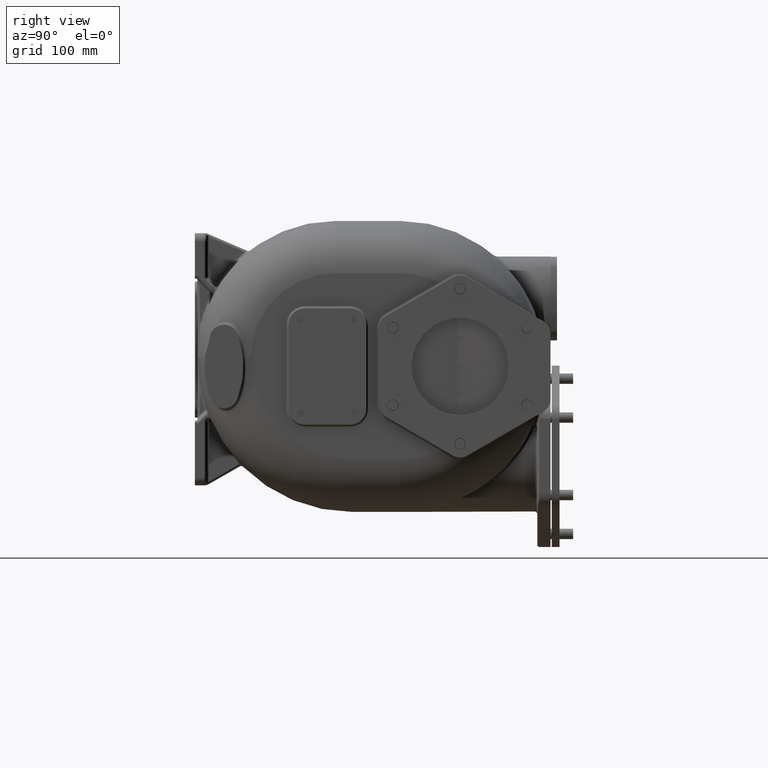
[diagram: clean part render]
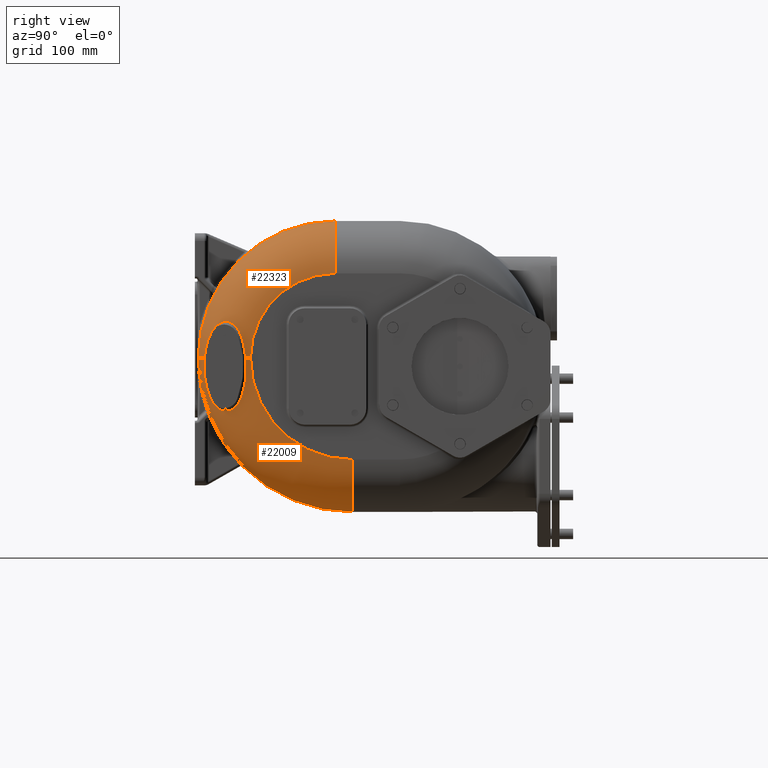
[diagram: same view with one multi-face feature highlighted, each face labeled with its STEP entity id]
A machine part, right view. The highlighted faces form ONE feature: a constant-radius fillet chain: 2 tangent blend faces with common blend radius 81 mm. The faces share edges in the B-rep.
Their STEP definitions:
[1] entity #22009 (Torus):
#594=CARTESIAN_POINT('',(1.323108332678E2,1.463278025361E1,-1.3E1));
#595=CARTESIAN_POINT('',(1.321929159865E2,1.456947936981E1,-1.374555449030E1));
#596=CARTESIAN_POINT('',(1.319638233510E2,1.445455072807E1,-1.524084312153E1));
#597=CARTESIAN_POINT('',(1.316405377955E2,1.431721406541E1,-1.749793679789E1));
#598=CARTESIAN_POINT('',(1.313388376110E2,1.421540285107E1,-1.976220701034E1));
#599=CARTESIAN_POINT('',(1.310594774055E2,1.414914611051E1,-2.202897011508E1));
#600=CARTESIAN_POINT('',(1.308034259133E2,1.411841430698E1,-2.429302126710E1));
#601=CARTESIAN_POINT('',(1.305714059698E2,1.412288453073E1,-2.654936909042E1));
#602=CARTESIAN_POINT('',(1.303641189346E2,1.416203132697E1,-2.879253267763E1));
#603=CARTESIAN_POINT('',(1.301821588615E2,1.423507465947E1,-3.101674278618E1));
#604=CARTESIAN_POINT('',(1.300258495110E2,1.434092456779E1,-3.321630553775E1));
#605=CARTESIAN_POINT('',(1.298956415263E2,1.447841280720E1,-3.538582157033E1));
#606=CARTESIAN_POINT('',(1.297916810723E2,1.464606482799E1,-3.751987319681E1));
#607=CARTESIAN_POINT('',(1.297138265640E2,1.484216925607E1,-3.961354069893E1));
#608=CARTESIAN_POINT('',(1.296619765889E2,1.506519338546E1,-4.166411083156E1));
#609=CARTESIAN_POINT('',(1.296357107990E2,1.531336935544E1,-4.366854482837E1));
#610=CARTESIAN_POINT('',(1.296345710273E2,1.558501175040E1,-4.562486243165E1));
#611=CARTESIAN_POINT('',(1.296580666419E2,1.587854971024E1,-4.753196597303E1));
#612=CARTESIAN_POINT('',(1.297054573793E2,1.619228994133E1,-4.938863645890E1));
#613=CARTESIAN_POINT('',(1.297761310083E2,1.652480432405E1,-5.119476029080E1));
#614=CARTESIAN_POINT('',(1.298693537382E2,1.687468746011E1,-5.295039370158E1));
#615=CARTESIAN_POINT('',(1.299843304193E2,1.724059390064E1,-5.465581021174E1));
#616=CARTESIAN_POINT('',(1.301203787487E2,1.762139047255E1,-5.631180013578E1));
#617=CARTESIAN_POINT('',(1.302766966480E2,1.801595976922E1,-5.791919304816E1));
#618=CARTESIAN_POINT('',(1.304525560798E2,1.842332008604E1,-5.947898473001E1));
#619=CARTESIAN_POINT('',(1.306472512651E2,1.884259451904E1,-6.099229934181E1));
#620=CARTESIAN_POINT('',(1.308600437599E2,1.927297211061E1,-6.246034021823E1));
#621=CARTESIAN_POINT('',(1.310902707221E2,1.971372939236E1,-6.388424488894E1));
#622=CARTESIAN_POINT('',(1.313372636215E2,2.016422670904E1,-6.526527235066E1));
#623=CARTESIAN_POINT('',(1.316003771177E2,2.062387951190E1,-6.660461685288E1));
#624=CARTESIAN_POINT('',(1.318789948743E2,2.109214708328E1,-6.790337406105E1));
#625=CARTESIAN_POINT('',(1.321725244732E2,2.156858203436E1,-6.916276597328E1));
#626=CARTESIAN_POINT('',(1.324803776733E2,2.205272903275E1,-7.038378803355E1));
#627=CARTESIAN_POINT('',(1.328019992718E2,2.254420348146E1,-7.156748310063E1));
#628=CARTESIAN_POINT('',(1.331368547447E2,2.304266699685E1,-7.271487294511E1));
#629=CARTESIAN_POINT('',(1.334843961739E2,2.354775701753E1,-7.382678815048E1));
#630=CARTESIAN_POINT('',(1.338441350259E2,2.405920807460E1,-7.490417352150E1));
#631=CARTESIAN_POINT('',(1.342155565869E2,2.457672296699E1,-7.594780450483E1));
#632=CARTESIAN_POINT('',(1.345981686769E2,2.510003405992E1,-7.695842569171E1));
#633=CARTESIAN_POINT('',(1.349915192180E2,2.562893215547E1,-7.793681314708E1));
#634=CARTESIAN_POINT('',(1.353951091935E2,2.616315119328E1,-7.888357244240E1));
#635=CARTESIAN_POINT('',(1.358085079080E2,2.670250573226E1,-7.979937482440E1));
#636=CARTESIAN_POINT('',(1.362312618623E2,2.724679058739E1,-8.068481012046E1));
#637=CARTESIAN_POINT('',(1.366629148651E2,2.779579373420E1,-8.154040366904E1));
#638=CARTESIAN_POINT('',(1.371030703166E2,2.834936953940E1,-8.236672217447E1));
#639=CARTESIAN_POINT('',(1.375512711636E2,2.890731136185E1,-8.316422303742E1));
#640=CARTESIAN_POINT('',(1.380071182059E2,2.946946616968E1,-8.393337852558E1));
#641=CARTESIAN_POINT('',(1.384702104602E2,3.003568397904E1,-8.467463859723E1));
#642=CARTESIAN_POINT('',(1.389401160171E2,3.060578050749E1,-8.538838898758E1));
#643=CARTESIAN_POINT('',(1.394164729358E2,3.117963545908E1,-8.607503727699E1));
#644=CARTESIAN_POINT('',(1.398988645163E2,3.175708003004E1,-8.673493992039E1));
#645=CARTESIAN_POINT('',(1.403869006968E2,3.233796203254E1,-8.736843292871E1));
#646=CARTESIAN_POINT('',(1.408802221836E2,3.292215751081E1,-8.797585213930E1));
#647=CARTESIAN_POINT('',(1.413784109194E2,3.350948687114E1,-8.855748941958E1));
#648=CARTESIAN_POINT('',(1.418811095929E2,3.409981679914E1,-8.911363189090E1));
#649=CARTESIAN_POINT('',(1.423879383908E2,3.469299394010E1,-8.964455076792E1));
#650=CARTESIAN_POINT('',(1.428984913039E2,3.528883420617E1,-9.015048998223E1));
#651=CARTESIAN_POINT('',(1.434124191458E2,3.588719641385E1,-9.063168742857E1));
#652=CARTESIAN_POINT('',(1.439293170632E2,3.648788712883E1,-9.108836342053E1));
#653=CARTESIAN_POINT('',(1.444487901576E2,3.709071163010E1,-9.152072324662E1));
#654=CARTESIAN_POINT('',(1.449704750155E2,3.769549554336E1,-9.192896344836E1));
#655=CARTESIAN_POINT('',(1.454939456896E2,3.830200168700E1,-9.231326869725E1));
#656=CARTESIAN_POINT('',(1.460188110616E2,3.891001313679E1,-9.267381641223E1));
#657=CARTESIAN_POINT('',(1.465446803131E2,3.951930424899E1,-9.301077692639E1));
#658=CARTESIAN_POINT('',(1.470711247058E2,4.012960732484E1,-9.332432350819E1));
#659=CARTESIAN_POINT('',(1.475977579939E2,4.074068180711E1,-9.361462412449E1));
#660=CARTESIAN_POINT('',(1.481241656165E2,4.135224879858E1,-9.388184153948E1));
#661=CARTESIAN_POINT('',(1.486499190286E2,4.196400698444E1,-9.412614830144E1));
#662=CARTESIAN_POINT('',(1.491746235057E2,4.257567251161E1,-9.434771132124E1));
#663=CARTESIAN_POINT('',(1.496978756090E2,4.318694818094E1,-9.454671811071E1));
#664=CARTESIAN_POINT('',(1.502192922606E2,4.379754763319E1,-9.472336679492E1));
#665=CARTESIAN_POINT('',(1.507385054394E2,4.440718144728E1,-9.487784233726E1));
#666=CARTESIAN_POINT('',(1.512550967418E2,4.501549855094E1,-9.501034644267E1));
#667=CARTESIAN_POINT('',(1.517686710283E2,4.562215571993E1,-9.512108529684E1));
#668=CARTESIAN_POINT('',(1.522788843594E2,4.622685477822E1,-9.521028024643E1));
#669=CARTESIAN_POINT('',(1.527854503185E2,4.682936281408E1,-9.527818802354E1));
#670=CARTESIAN_POINT('',(1.532881003993E2,4.742944416094E1,-9.532503650922E1));
#671=CARTESIAN_POINT('',(1.537865824981E2,4.802687725904E1,-9.535106683456E1));
#672=CARTESIAN_POINT('',(1.541159068464E2,4.842318745853E1,-9.535470739627E1));
#673=CARTESIAN_POINT('',(1.542798226339E2,4.862085925553E1,-9.535313771391E1));
#675=CARTESIAN_POINT('',(1.542798226339E2,4.862085925553E1,-9.535313771391E1));
#676=CARTESIAN_POINT('',(1.544423996887E2,4.881691741832E1,-9.535158046549E1));
#677=CARTESIAN_POINT('',(1.547660308980E2,4.920798821862E1,-9.534172661827E1));
#678=CARTESIAN_POINT('',(1.552469256741E2,4.979153858810E1,-9.530694732464E1));
#679=CARTESIAN_POINT('',(1.557229646401E2,5.037170033012E1,-9.525237073883E1));
#680=CARTESIAN_POINT('',(1.561939544066E2,5.094826299052E1,-9.517819314944E1));
#681=CARTESIAN_POINT('',(1.566597004572E2,5.152102249796E1,-9.508464989140E1));
#682=CARTESIAN_POINT('',(1.571200135625E2,5.208975288240E1,-9.497193550964E1));
#683=CARTESIAN_POINT('',(1.575748336676E2,5.265439112657E1,-9.484023676056E1));
#684=CARTESIAN_POINT('',(1.580241895115E2,5.321498671247E1,-9.468970706505E1));
#685=CARTESIAN_POINT('',(1.584681018771E2,5.377155684404E1,-9.452042641100E1));
#686=CARTESIAN_POINT('',(1.589065847698E2,5.432413239216E1,-9.433250757738E1));
#687=CARTESIAN_POINT('',(1.593396506228E2,5.487272836058E1,-9.412601087209E1));
#688=CARTESIAN_POINT('',(1.597673262482E2,5.541736840637E1,-9.390094647716E1));
#689=CARTESIAN_POINT('',(1.601897007090E2,5.595818063820E1,-9.365731798904E1));
#690=CARTESIAN_POINT('',(1.606068435463E2,5.649524462615E1,-9.339504330858E1));
#691=CARTESIAN_POINT('',(1.610188425294E2,5.702867605303E1,-9.311401723105E1));
#692=CARTESIAN_POINT('',(1.614258031685E2,5.755862786975E1,-9.281410447574E1));
#693=CARTESIAN_POINT('',(1.618277977199E2,5.808518710029E1,-9.249509024887E1));
#694=CARTESIAN_POINT('',(1.622249585266E2,5.860854908487E1,-9.215672515870E1));
#695=CARTESIAN_POINT('',(1.626174111708E2,5.912889893847E1,-9.179868863430E1));
#696=CARTESIAN_POINT('',(1.630052469816E2,5.964636731508E1,-9.142059959251E1));
#697=CARTESIAN_POINT('',(1.633885668407E2,6.016113166212E1,-9.102207403849E1));
#698=CARTESIAN_POINT('',(1.637674053966E2,6.067326573026E1,-9.060269218464E1));
#699=CARTESIAN_POINT('',(1.641418927591E2,6.118298030003E1,-9.016187580460E1));
#700=CARTESIAN_POINT('',(1.645123023906E2,6.169071057770E1,-8.969882063545E1));
#701=CARTESIAN_POINT('',(1.648788790020E2,6.219684695184E1,-8.921255958476E1));
#702=CARTESIAN_POINT('',(1.652413590373E2,6.270110272967E1,-8.870274918509E1));
#703=CARTESIAN_POINT('',(1.655992920661E2,6.320292619056E1,-8.816936683965E1));
#704=CARTESIAN_POINT('',(1.659522527307E2,6.370177302325E1,-8.761239062495E1));
#705=CARTESIAN_POINT('',(1.662995351924E2,6.419670448315E1,-8.703240965125E1));
#706=CARTESIAN_POINT('',(1.666404219958E2,6.468672674218E1,-8.643023728479E1));
#707=CARTESIAN_POINT('',(1.669745766666E2,6.517136167087E1,-8.580619880309E1));
#708=CARTESIAN_POINT('',(1.673021358542E2,6.565082661331E1,-8.515978863903E1));
#709=CARTESIAN_POINT('',(1.676230990987E2,6.612513653549E1,-8.449067039079E1));
#710=CARTESIAN_POINT('',(1.679375383302E2,6.659441634409E1,-8.379831156633E1));
#711=CARTESIAN_POINT('',(1.682455083759E2,6.705878138114E1,-8.308215865974E1));
#712=CARTESIAN_POINT('',(1.685470251422E2,6.751828447914E1,-8.234165568474E1));
#713=CARTESIAN_POINT('',(1.688420876776E2,6.797295725393E1,-8.157622617370E1));
#714=CARTESIAN_POINT('',(1.691306688300E2,6.842280165738E1,-8.078532277697E1));
#715=CARTESIAN_POINT('',(1.694127200566E2,6.886777475055E1,-7.996837531236E1));
#716=CARTESIAN_POINT('',(1.696881846654E2,6.930782205317E1,-7.912479599465E1));
#717=CARTESIAN_POINT('',(1.699569862022E2,6.974286449017E1,-7.825403907476E1));
#718=CARTESIAN_POINT('',(1.702190278252E2,7.017276547454E1,-7.735554245570E1));
#719=CARTESIAN_POINT('',(1.704742056317E2,7.059737860701E1,-7.642877167029E1));
#720=CARTESIAN_POINT('',(1.707224052516E2,7.101653524537E1,-7.547323004446E1));
#721=CARTESIAN_POINT('',(1.709634945513E2,7.142999909520E1,-7.448842477709E1));
#722=CARTESIAN_POINT('',(1.711973473386E2,7.183754741465E1,-7.347391052112E1));
#723=CARTESIAN_POINT('',(1.714238293693E2,7.223891580083E1,-7.242927937736E1));
#724=CARTESIAN_POINT('',(1.716427978446E2,7.263378097129E1,-7.135415807817E1));
#725=CARTESIAN_POINT('',(1.718541296952E2,7.302185485215E1,-7.024822214443E1));
#726=CARTESIAN_POINT('',(1.720576922831E2,7.340277427429E1,-6.911120060085E1));
#727=CARTESIAN_POINT('',(1.722533629531E2,7.377615390168E1,-6.794287372012E1));
#728=CARTESIAN_POINT('',(1.724410455457E2,7.414164359585E1,-6.674306832442E1));
#729=CARTESIAN_POINT('',(1.726206357197E2,7.449879221529E1,-6.551169515921E1));
#730=CARTESIAN_POINT('',(1.727920612088E2,7.484718099399E1,-6.424870852858E1));
#731=CARTESIAN_POINT('',(1.729552720555E2,7.518639007246E1,-6.295412666103E1));
#732=CARTESIAN_POINT('',(1.731102218938E2,7.551591173362E1,-6.162807533586E1));
#733=CARTESIAN_POINT('',(1.732569109331E2,7.583531077657E1,-6.027070178700E1));
#734=CARTESIAN_POINT('',(1.733953525764E2,7.614409611057E1,-5.888226534023E1));
#735=CARTESIAN_POINT('',(1.735255837751E2,7.644174550661E1,-5.746311762298E1));
#736=CARTESIAN_POINT('',(1.736476883073E2,7.672781013281E1,-5.601362639371E1));
#737=CARTESIAN_POINT('',(1.737617569490E2,7.700174538463E1,-5.453434101373E1));
#738=CARTESIAN_POINT('',(1.738679219137E2,7.726305174979E1,-5.302584817470E1));
#739=CARTESIAN_POINT('',(1.739663486652E2,7.751125618231E1,-5.148879738054E1));
#740=CARTESIAN_POINT('',(1.740572161374E2,7.774581458037E1,-4.992400309577E1));
#741=CARTESIAN_POINT('',(1.741407475678E2,7.796627499115E1,-4.833225306416E1));
#742=CARTESIAN_POINT('',(1.742171773482E2,7.817214000754E1,-4.671455235016E1));
#743=CARTESIAN_POINT('',(1.742867599844E2,7.836291005654E1,-4.507204591842E1));
#744=CARTESIAN_POINT('',(1.743497810481E2,7.853817016881E1,-4.340586654174E1));
#745=CARTESIAN_POINT('',(1.744065340878E2,7.869746347388E1,-4.171716124025E1));
#746=CARTESIAN_POINT('',(1.744573313751E2,7.884040526037E1,-4.000701094048E1));
#747=CARTESIAN_POINT('',(1.745024805864E2,7.896660903105E1,-3.827683973337E1));
#748=CARTESIAN_POINT('',(1.745422779772E2,7.907565912617E1,-3.652858319249E1));
#749=CARTESIAN_POINT('',(1.745770289814E2,7.916725590452E1,-3.476419529846E1));
#750=CARTESIAN_POINT('',(1.746070393668E2,7.924111536502E1,-3.298477535779E1));
#751=CARTESIAN_POINT('',(1.746325963960E2,7.929697648165E1,-3.119123310261E1));
#752=CARTESIAN_POINT('',(1.746539632849E2,7.933463124442E1,-2.938449858556E1));
#753=CARTESIAN_POINT('',(1.746713737393E2,7.935392833068E1,-2.756570393844E1));
#754=CARTESIAN_POINT('',(1.746850329264E2,7.935477703971E1,-2.573534404594E1));
#755=CARTESIAN_POINT('',(1.746950718285E2,7.933700093219E1,-2.389773536613E1));
#756=CARTESIAN_POINT('',(1.747015977497E2,7.930059672400E1,-2.205906377323E1));
#757=CARTESIAN_POINT('',(1.747047109882E2,7.924577813919E1,-2.022482491122E1));
#758=CARTESIAN_POINT('',(1.747044601726E2,7.917248507951E1,-1.839815145703E1));
#759=CARTESIAN_POINT('',(1.747008651088E2,7.908084210558E1,-1.658245740338E1));
#760=CARTESIAN_POINT('',(1.746939104412E2,7.897104841513E1,-1.478055333917E1));
#761=CARTESIAN_POINT('',(1.746870133239E2,7.888607797407E1,-1.359177182079E1));
#762=CARTESIAN_POINT('',(1.746829829849E2,7.884065249736E1,-1.299999999999E1));
#764=CARTESIAN_POINT('',(9.4E1,8.6E1,-1.3E1));
#765=DIRECTION('',(0.E0,0.E0,-1.E0));
#766=DIRECTION('',(1.E0,0.E0,0.E0));
#767=AXIS2_PLACEMENT_3D('',#764,#765,#766);
#769=CARTESIAN_POINT('',(9.4E1,8.6E1,-1.3E1));
#770=DIRECTION('',(0.E0,0.E0,-1.E0));
#771=DIRECTION('',(4.729732502194E-1,-8.810767869925E-1,0.E0));
#772=AXIS2_PLACEMENT_3D('',#769,#770,#771);
#1496=CARTESIAN_POINT('',(9.4E1,2.43E2,-1.3E1));
#1497=DIRECTION('',(1.E0,0.E0,0.E0));
#1498=DIRECTION('',(0.E0,-1.E0,0.E0));
#1499=AXIS2_PLACEMENT_3D('',#1496,#1497,#1498);
#5146=CARTESIAN_POINT('',(9.4E1,2.43E2,-1.7E2));
#5147=DIRECTION('',(0.E0,1.E0,0.E0));
#5148=DIRECTION('',(1.E0,0.E0,0.E0));
#5149=AXIS2_PLACEMENT_3D('',#5146,#5147,#5148);
#5164=CARTESIAN_POINT('',(1.75E2,2.43E2,-1.3E1));
#5165=DIRECTION('',(1.E0,0.E0,0.E0));
#5166=DIRECTION('',(0.E0,-1.E0,0.E0));
#5167=AXIS2_PLACEMENT_3D('',#5164,#5165,#5166);
#19100=CARTESIAN_POINT('',(9.4E1,2.43E2,-2.51E2));
#19102=VERTEX_POINT('',#19100);
#19203=CARTESIAN_POINT('',(1.75E2,2.43E2,-1.7E2));
#19205=VERTEX_POINT('',#19203);
#19209=CARTESIAN_POINT('',(1.75E2,8.6E1,-1.3E1));
#19210=VERTEX_POINT('',#19209);
#19211=CARTESIAN_POINT('',(9.4E1,5.E0,-1.3E1));
#19212=VERTEX_POINT('',#19211);
#19217=VERTEX_POINT('',#594);
#19218=VERTEX_POINT('',#673);
#19220=VERTEX_POINT('',#762);
#21989=CARTESIAN_POINT('',(9.4E1,2.43E2,-1.3E1));
#21990=DIRECTION('',(-1.E0,0.E0,0.E0));
#21991=DIRECTION('',(0.E0,-9.999749671009E-1,7.075674636159E-3));
#21992=AXIS2_PLACEMENT_3D('',#21989,#21990,#21991);
#21993=TOROIDAL_SURFACE('',#21992,1.57E2,8.1E1);
#21994=ORIENTED_EDGE('',*,*,#21979,.T.);
#21996=ORIENTED_EDGE('',*,*,#21995,.T.);
#21998=ORIENTED_EDGE('',*,*,#21997,.F.);
#22000=ORIENTED_EDGE('',*,*,#21999,.T.);
#22002=ORIENTED_EDGE('',*,*,#22001,.T.);
#22004=ORIENTED_EDGE('',*,*,#22003,.F.);
#22006=ORIENTED_EDGE('',*,*,#22005,.F.);
#22007=EDGE_LOOP('',(#21994,#21996,#21998,#22000,#22002,#22004,#22006));
#22008=FACE_OUTER_BOUND('',#22007,.F.);
#22009=ADVANCED_FACE('',(#22008),#21993,.T.);
#674=B_SPLINE_CURVE_WITH_KNOTS('',3,(#594,#595,#596,#597,#598,#599,#600,#601,
#602,#603,#604,#605,#606,#607,#608,#609,#610,#611,#612,#613,#614,#615,#616,#617,
#618,#619,#620,#621,#622,#623,#624,#625,#626,#627,#628,#629,#630,#631,#632,#633,
#634,#635,#636,#637,#638,#639,#640,#641,#642,#643,#644,#645,#646,#647,#648,#649,
#650,#651,#652,#653,#654,#655,#656,#657,#658,#659,#660,#661,#662,#663,#664,#665,
#666,#667,#668,#669,#670,#671,#672,#673),.UNSPECIFIED.,.F.,.F.,(4,1,1,1,1,1,1,1,
1,1,1,1,1,1,1,1,1,1,1,1,1,1,1,1,1,1,1,1,1,1,1,1,1,1,1,1,1,1,1,1,1,1,1,1,1,1,1,1,
1,1,1,1,1,1,1,1,1,1,1,1,1,1,1,1,1,1,1,1,1,1,1,1,1,1,1,1,1,4),(0.E0,
1.298701298701E-2,2.597402597403E-2,3.896103896104E-2,5.194805194805E-2,
6.493506493506E-2,7.792207792208E-2,9.090909090909E-2,1.038961038961E-1,
1.168831168831E-1,1.298701298701E-1,1.428571428571E-1,1.558441558442E-1,
1.688311688312E-1,1.818181818182E-1,1.948051948052E-1,2.077922077922E-1,
2.207792207792E-1,2.337662337662E-1,2.467532467532E-1,2.597402597403E-1,
2.727272727273E-1,2.857142857143E-1,2.987012987013E-1,3.116883116883E-1,
3.246753246753E-1,3.376623376623E-1,3.506493506494E-1,3.636363636364E-1,
3.766233766234E-1,3.896103896104E-1,4.025974025974E-1,4.155844155844E-1,
4.285714285714E-1,4.415584415584E-1,4.545454545455E-1,4.675324675325E-1,
4.805194805195E-1,4.935064935065E-1,5.064935064935E-1,5.194805194805E-1,
5.324675324675E-1,5.454545454545E-1,5.584415584416E-1,5.714285714286E-1,
5.844155844156E-1,5.974025974026E-1,6.103896103896E-1,6.233766233766E-1,
6.363636363636E-1,6.493506493506E-1,6.623376623377E-1,6.753246753247E-1,
6.883116883117E-1,7.012987012987E-1,7.142857142857E-1,7.272727272727E-1,
7.402597402597E-1,7.532467532468E-1,7.662337662338E-1,7.792207792208E-1,
7.922077922078E-1,8.051948051948E-1,8.181818181818E-1,8.311688311688E-1,
8.441558441558E-1,8.571428571429E-1,8.701298701299E-1,8.831168831169E-1,
8.961038961039E-1,9.090909090909E-1,9.220779220779E-1,9.350649350649E-1,
9.480519480519E-1,9.610389610390E-1,9.740259740260E-1,9.870129870130E-1,1.E0),
.UNSPECIFIED.);
#763=B_SPLINE_CURVE_WITH_KNOTS('',3,(#675,#676,#677,#678,#679,#680,#681,#682,
#683,#684,#685,#686,#687,#688,#689,#690,#691,#692,#693,#694,#695,#696,#697,#698,
#699,#700,#701,#702,#703,#704,#705,#706,#707,#708,#709,#710,#711,#712,#713,#714,
#715,#716,#717,#718,#719,#720,#721,#722,#723,#724,#725,#726,#727,#728,#729,#730,
#731,#732,#733,#734,#735,#736,#737,#738,#739,#740,#741,#742,#743,#744,#745,#746,
#747,#748,#749,#750,#751,#752,#753,#754,#755,#756,#757,#758,#759,#760,#761,
#762),.UNSPECIFIED.,.F.,.F.,(4,1,1,1,1,1,1,1,1,1,1,1,1,1,1,1,1,1,1,1,1,1,1,1,1,
1,1,1,1,1,1,1,1,1,1,1,1,1,1,1,1,1,1,1,1,1,1,1,1,1,1,1,1,1,1,1,1,1,1,1,1,1,1,1,1,
1,1,1,1,1,1,1,1,1,1,1,1,1,1,1,1,1,1,1,1,4),(0.E0,1.176470588235E-2,
2.352941176471E-2,3.529411764706E-2,4.705882352941E-2,5.882352941176E-2,
7.058823529412E-2,8.235294117647E-2,9.411764705882E-2,1.058823529412E-1,
1.176470588235E-1,1.294117647059E-1,1.411764705882E-1,1.529411764706E-1,
1.647058823529E-1,1.764705882353E-1,1.882352941176E-1,2.E-1,2.117647058824E-1,
2.235294117647E-1,2.352941176471E-1,2.470588235294E-1,2.588235294118E-1,
2.705882352941E-1,2.823529411765E-1,2.941176470588E-1,3.058823529412E-1,
3.176470588235E-1,3.294117647059E-1,3.411764705882E-1,3.529411764706E-1,
3.647058823529E-1,3.764705882353E-1,3.882352941176E-1,4.E-1,4.117647058824E-1,
4.235294117647E-1,4.352941176471E-1,4.470588235294E-1,4.588235294118E-1,
4.705882352941E-1,4.823529411765E-1,4.941176470588E-1,5.058823529412E-1,
5.176470588235E-1,5.294117647059E-1,5.411764705882E-1,5.529411764706E-1,
5.647058823529E-1,5.764705882353E-1,5.882352941176E-1,6.E-1,6.117647058824E-1,
6.235294117647E-1,6.352941176471E-1,6.470588235294E-1,6.588235294118E-1,
6.705882352941E-1,6.823529411765E-1,6.941176470588E-1,7.058823529412E-1,
7.176470588235E-1,7.294117647059E-1,7.411764705882E-1,7.529411764706E-1,
7.647058823529E-1,7.764705882353E-1,7.882352941176E-1,8.E-1,8.117647058824E-1,
8.235294117647E-1,8.352941176471E-1,8.470588235294E-1,8.588235294118E-1,
8.705882352941E-1,8.823529411765E-1,8.941176470588E-1,9.058823529412E-1,
9.176470588235E-1,9.294117647059E-1,9.411764705882E-1,9.529411764706E-1,
9.647058823529E-1,9.764705882353E-1,9.882352941176E-1,1.E0),.UNSPECIFIED.);
#768=CIRCLE('',#767,8.1E1);
#773=CIRCLE('',#772,8.1E1);
#1500=CIRCLE('',#1499,2.38E2);
#5150=CIRCLE('',#5149,8.1E1);
#5168=CIRCLE('',#5167,1.57E2);
#21979=EDGE_CURVE('',#19217,#19218,#674,.T.);
#21995=EDGE_CURVE('',#19218,#19220,#763,.T.);
#21997=EDGE_CURVE('',#19210,#19220,#768,.T.);
#21999=EDGE_CURVE('',#19210,#19205,#5168,.T.);
#22001=EDGE_CURVE('',#19205,#19102,#5150,.T.);
#22003=EDGE_CURVE('',#19212,#19102,#1500,.T.);
#22005=EDGE_CURVE('',#19217,#19212,#773,.T.);
[2] entity #22323 (Torus):
#594=CARTESIAN_POINT('',(1.323108332678E2,1.463278025361E1,-1.3E1));
#762=CARTESIAN_POINT('',(1.746829829849E2,7.884065249736E1,-1.299999999999E1));
#764=CARTESIAN_POINT('',(9.4E1,8.6E1,-1.3E1));
#765=DIRECTION('',(0.E0,0.E0,-1.E0));
#766=DIRECTION('',(1.E0,0.E0,0.E0));
#767=AXIS2_PLACEMENT_3D('',#764,#765,#766);
#769=CARTESIAN_POINT('',(9.4E1,8.6E1,-1.3E1));
#770=DIRECTION('',(0.E0,0.E0,-1.E0));
#771=DIRECTION('',(4.729732502194E-1,-8.810767869925E-1,0.E0));
#772=AXIS2_PLACEMENT_3D('',#769,#770,#771);
#784=CARTESIAN_POINT('',(1.746829829849E2,7.884065249736E1,-1.299999999999E1));
#785=CARTESIAN_POINT('',(1.746792044707E2,7.879806956061E1,-1.244553714829E1));
#786=CARTESIAN_POINT('',(1.746705265707E2,7.870769678981E1,-1.134183423742E1));
#787=CARTESIAN_POINT('',(1.746539980732E2,7.855644554239E1,-9.699757664950E0));
#788=CARTESIAN_POINT('',(1.746338156008E2,7.838987062858E1,-8.073686977598E0));
#789=CARTESIAN_POINT('',(1.746098034248E2,7.820826024393E1,-6.464871554986E0));
#790=CARTESIAN_POINT('',(1.745817665249E2,7.801193222903E1,-4.874892532193E0));
#791=CARTESIAN_POINT('',(1.745495026881E2,7.780129409235E1,-3.305221677656E0));
#792=CARTESIAN_POINT('',(1.745127966902E2,7.757672612600E1,-1.757354840660E0));
#793=CARTESIAN_POINT('',(1.744714366868E2,7.733868265683E1,-2.327840045208E-1));
#794=CARTESIAN_POINT('',(1.744252171906E2,7.708766265939E1,1.267102820674E0));
#795=CARTESIAN_POINT('',(1.743739243866E2,7.682407887206E1,2.741278317563E0));
#796=CARTESIAN_POINT('',(1.743173675814E2,7.654845477321E1,4.188675821983E0));
#797=CARTESIAN_POINT('',(1.742553626895E2,7.626126693898E1,5.608395762124E0));
#798=CARTESIAN_POINT('',(1.741877398661E2,7.596298881410E1,6.999655913846E0));
#799=CARTESIAN_POINT('',(1.741143627067E2,7.565418207784E1,8.361678124405E0));
#800=CARTESIAN_POINT('',(1.740350946851E2,7.533528675545E1,9.693975672295E0));
#801=CARTESIAN_POINT('',(1.739498308758E2,7.500680699593E1,1.099609739216E1));
#802=CARTESIAN_POINT('',(1.738584917382E2,7.466925276322E1,1.226767437093E1));
#803=CARTESIAN_POINT('',(1.737610035583E2,7.432304365442E1,1.350851520461E1));
#804=CARTESIAN_POINT('',(1.736573333258E2,7.396868929554E1,1.471843317636E1));
#805=CARTESIAN_POINT('',(1.735474568272E2,7.360662232571E1,1.589738334766E1));
#806=CARTESIAN_POINT('',(1.734313621872E2,7.323723652061E1,1.704543289633E1));
#807=CARTESIAN_POINT('',(1.733090748611E2,7.286099452472E1,1.816265632786E1));
#808=CARTESIAN_POINT('',(1.731805843151E2,7.247815799064E1,1.924953530315E1));
#809=CARTESIAN_POINT('',(1.730458859410E2,7.208897382508E1,2.030663207400E1));
#810=CARTESIAN_POINT('',(1.729049902444E2,7.169370194106E1,2.133450229444E1));
#811=CARTESIAN_POINT('',(1.727579287663E2,7.129260673208E1,2.233355721686E1));
#812=CARTESIAN_POINT('',(1.726047416117E2,7.088595527585E1,2.330429596845E1));
#813=CARTESIAN_POINT('',(1.724454891947E2,7.047402624871E1,2.424712006149E1));
#814=CARTESIAN_POINT('',(1.722802523382E2,7.005709820622E1,2.516231376310E1));
#815=CARTESIAN_POINT('',(1.721091271209E2,6.963547384452E1,2.605023196009E1));
#816=CARTESIAN_POINT('',(1.719321956842E2,6.920937749631E1,2.691130291511E1));
#817=CARTESIAN_POINT('',(1.717495296289E2,6.877898041427E1,2.774600626023E1));
#818=CARTESIAN_POINT('',(1.715612059047E2,6.834446434950E1,2.855485980441E1));
#819=CARTESIAN_POINT('',(1.713672999634E2,6.790597423986E1,2.933832526555E1));
#820=CARTESIAN_POINT('',(1.711678809135E2,6.746363050161E1,3.009689199644E1));
#821=CARTESIAN_POINT('',(1.709630157399E2,6.701754925964E1,3.083107712075E1));
#822=CARTESIAN_POINT('',(1.707527595090E2,6.656779713466E1,3.154136302940E1));
#823=CARTESIAN_POINT('',(1.705371531770E2,6.611441280380E1,3.222826967108E1));
#824=CARTESIAN_POINT('',(1.703162347739E2,6.565743196281E1,3.289230513240E1));
#825=CARTESIAN_POINT('',(1.700900311895E2,6.519685430015E1,3.353393277120E1));
#826=CARTESIAN_POINT('',(1.698585497718E2,6.473264772798E1,3.415364822003E1));
#827=CARTESIAN_POINT('',(1.696217907795E2,6.426477189168E1,3.475192461521E1));
#828=CARTESIAN_POINT('',(1.693797316946E2,6.379313686223E1,3.532921277068E1));
#829=CARTESIAN_POINT('',(1.691323275721E2,6.331762193331E1,3.588597510124E1));
#830=CARTESIAN_POINT('',(1.688795595075E2,6.283816511085E1,3.642256581178E1));
#831=CARTESIAN_POINT('',(1.686213922855E2,6.235467015010E1,3.693930659569E1));
#832=CARTESIAN_POINT('',(1.683577407041E2,6.186696124701E1,3.743658527980E1));
#833=CARTESIAN_POINT('',(1.680884414929E2,6.137473120906E1,3.791487104957E1));
#834=CARTESIAN_POINT('',(1.678132017963E2,6.087744850791E1,3.837471269326E1));
#835=CARTESIAN_POINT('',(1.675321945618E2,6.037544641962E1,3.881583869027E1));
#836=CARTESIAN_POINT('',(1.672459947355E2,5.986974695742E1,3.923747269391E1));
#837=CARTESIAN_POINT('',(1.669551479588E2,5.936126740473E1,3.963905052886E1));
#838=CARTESIAN_POINT('',(1.666601170991E2,5.885076549029E1,4.002032380338E1));
#839=CARTESIAN_POINT('',(1.663614002514E2,5.833902292176E1,4.038108776787E1));
#840=CARTESIAN_POINT('',(1.660593720981E2,5.782658040855E1,4.072139032272E1));
#841=CARTESIAN_POINT('',(1.657537844266E2,5.731294017186E1,4.104202588443E1));
#842=CARTESIAN_POINT('',(1.654443759204E2,5.679758926457E1,4.134360714781E1));
#843=CARTESIAN_POINT('',(1.651309861998E2,5.628021011734E1,4.162656769299E1));
#844=CARTESIAN_POINT('',(1.648136102591E2,5.576076291256E1,4.189117326028E1));
#845=CARTESIAN_POINT('',(1.644921850345E2,5.523909566732E1,4.213763819879E1));
#846=CARTESIAN_POINT('',(1.641666337636E2,5.471506110908E1,4.236619668327E1));
#847=CARTESIAN_POINT('',(1.638368572977E2,5.418848140098E1,4.257704636E1));
#848=CARTESIAN_POINT('',(1.635027412343E2,5.365914533418E1,4.277029309083E1));
#849=CARTESIAN_POINT('',(1.631642434889E2,5.312698789890E1,4.294603204900E1));
#850=CARTESIAN_POINT('',(1.628213191196E2,5.259192735310E1,4.310428463705E1));
#851=CARTESIAN_POINT('',(1.624739071713E2,5.205385610728E1,4.324503448823E1));
#852=CARTESIAN_POINT('',(1.621219140664E2,5.151264027936E1,4.336830161882E1));
#853=CARTESIAN_POINT('',(1.617652269064E2,5.096809939680E1,4.347400464703E1));
#854=CARTESIAN_POINT('',(1.614038455106E2,5.042023901915E1,4.356202294576E1));
#855=CARTESIAN_POINT('',(1.610378902978E2,4.986925258604E1,4.363221984911E1));
#856=CARTESIAN_POINT('',(1.606674775312E2,4.931530104518E1,4.368440275502E1));
#857=CARTESIAN_POINT('',(1.602927234528E2,4.875855899149E1,4.371843370374E1));
#858=CARTESIAN_POINT('',(1.600401176294E2,4.838571796670E1,4.372891983878E1));
#859=CARTESIAN_POINT('',(1.599131193948E2,4.819886811485E1,4.373108258469E1));
#861=CARTESIAN_POINT('',(1.599131193948E2,4.819886811485E1,4.373108258469E1));
#862=CARTESIAN_POINT('',(1.597837170996E2,4.800848269575E1,4.373328602502E1));
#863=CARTESIAN_POINT('',(1.595233511070E2,4.762668044502E1,4.373140112179E1));
#864=CARTESIAN_POINT('',(1.591281122762E2,4.705088534469E1,4.370945965032E1));
#865=CARTESIAN_POINT('',(1.587283050793E2,4.647215729344E1,4.366812490201E1));
#866=CARTESIAN_POINT('',(1.583240321315E2,4.589062862121E1,4.360711615494E1));
#867=CARTESIAN_POINT('',(1.579153964054E2,4.530643492682E1,4.352616600458E1));
#868=CARTESIAN_POINT('',(1.575025377004E2,4.471974257819E1,4.342495290027E1));
#869=CARTESIAN_POINT('',(1.570855739380E2,4.413069496100E1,4.330318254168E1));
#870=CARTESIAN_POINT('',(1.566646272013E2,4.353943355180E1,4.316053802502E1));
#871=CARTESIAN_POINT('',(1.562398542652E2,4.294613493709E1,4.299667706911E1));
#872=CARTESIAN_POINT('',(1.558113531328E2,4.235090321656E1,4.281126534453E1));
#873=CARTESIAN_POINT('',(1.553792576938E2,4.175387644003E1,4.260392506802E1));
#874=CARTESIAN_POINT('',(1.549437076773E2,4.115519811587E1,4.237427091184E1));
#875=CARTESIAN_POINT('',(1.545048065442E2,4.055496744026E1,4.212190553704E1));
#876=CARTESIAN_POINT('',(1.540627151575E2,3.995334601246E1,4.184640122315E1));
#877=CARTESIAN_POINT('',(1.536175478291E2,3.935043810977E1,4.154731188310E1));
#878=CARTESIAN_POINT('',(1.531694067797E2,3.874633078482E1,4.122415583112E1));
#879=CARTESIAN_POINT('',(1.527184475588E2,3.814117160195E1,4.087643167830E1));
#880=CARTESIAN_POINT('',(1.522647486492E2,3.753501604646E1,4.050359138797E1));
#881=CARTESIAN_POINT('',(1.518084283301E2,3.692796824646E1,4.010506481121E1));
#882=CARTESIAN_POINT('',(1.513496166203E2,3.632014404002E1,3.968024760013E1));
#883=CARTESIAN_POINT('',(1.508883710899E2,3.571157536535E1,3.922846373576E1));
#884=CARTESIAN_POINT('',(1.504248220674E2,3.510238646464E1,3.874904123229E1));
#885=CARTESIAN_POINT('',(1.499590580078E2,3.449264892677E1,3.824122417929E1));
#886=CARTESIAN_POINT('',(1.494911412633E2,3.388241297546E1,3.770420256213E1));
#887=CARTESIAN_POINT('',(1.490212042292E2,3.327182042241E1,3.713717785446E1));
#888=CARTESIAN_POINT('',(1.485493036616E2,3.266092060651E1,3.653920718424E1));
#889=CARTESIAN_POINT('',(1.480755276740E2,3.204982130692E1,3.590935610721E1));
#890=CARTESIAN_POINT('',(1.475999965984E2,3.143867407269E1,3.524665138775E1));
#891=CARTESIAN_POINT('',(1.471227668542E2,3.082755889257E1,3.454996339584E1));
#892=CARTESIAN_POINT('',(1.466439576921E2,3.021666364747E1,3.381823702834E1));
#893=CARTESIAN_POINT('',(1.461636763300E2,2.960615943068E1,3.305027296729E1));
#894=CARTESIAN_POINT('',(1.456820125657E2,2.899621995452E1,3.224479554426E1));
#895=CARTESIAN_POINT('',(1.451991091460E2,2.838712020579E1,3.140060471589E1));
#896=CARTESIAN_POINT('',(1.447150876028E2,2.777910091009E1,3.051626813873E1));
#897=CARTESIAN_POINT('',(1.442300895049E2,2.717248276108E1,2.959043347079E1));
#898=CARTESIAN_POINT('',(1.437442737535E2,2.656762996023E1,2.862168332938E1));
#899=CARTESIAN_POINT('',(1.432577827151E2,2.596489670781E1,2.760838843727E1));
#900=CARTESIAN_POINT('',(1.427707661609E2,2.536472925261E1,2.654906152911E1));
#901=CARTESIAN_POINT('',(1.422834806852E2,2.476769595105E1,2.544214528891E1));
#902=CARTESIAN_POINT('',(1.417961899347E2,2.417443813252E1,2.428614927735E1));
#903=CARTESIAN_POINT('',(1.413091517248E2,2.358566726630E1,2.307968137192E1));
#904=CARTESIAN_POINT('',(1.408227468673E2,2.300221520214E1,2.182120993267E1));
#905=CARTESIAN_POINT('',(1.403372889723E2,2.242495840037E1,2.050940147683E1));
#906=CARTESIAN_POINT('',(1.398531196365E2,2.185483320171E1,1.914280870690E1));
#907=CARTESIAN_POINT('',(1.393706024780E2,2.129284079069E1,1.771988730485E1));
#908=CARTESIAN_POINT('',(1.388900179869E2,2.074002559565E1,1.623927532923E1));
#909=CARTESIAN_POINT('',(1.384118644196E2,2.019766687025E1,1.469973804761E1));
#910=CARTESIAN_POINT('',(1.379365480712E2,1.966706271912E1,1.310016541215E1));
#911=CARTESIAN_POINT('',(1.374645003529E2,1.914962668174E1,1.143969446494E1));
#912=CARTESIAN_POINT('',(1.369963978263E2,1.864703194106E1,9.717864821511E0));
#913=CARTESIAN_POINT('',(1.365326787705E2,1.816085147903E1,7.934295919351E0));
#914=CARTESIAN_POINT('',(1.360740179738E2,1.769289986537E1,6.089090868848E0));
#915=CARTESIAN_POINT('',(1.356211153244E2,1.724505220818E1,4.182658384068E0));
#916=CARTESIAN_POINT('',(1.351744779454E2,1.681910009717E1,2.215559436378E0));
#917=CARTESIAN_POINT('',(1.347352575325E2,1.641735592529E1,1.903477044404E-1));
#918=CARTESIAN_POINT('',(1.343043200259E2,1.604187561523E1,-1.890348004364E0));
#919=CARTESIAN_POINT('',(1.338825773627E2,1.569468663020E1,-4.023311504254E0));
#920=CARTESIAN_POINT('',(1.334712230803E2,1.537788619058E1,-6.204466846682E0));
#921=CARTESIAN_POINT('',(1.330711012472E2,1.509321195766E1,-8.429555363647E0));
#922=CARTESIAN_POINT('',(1.326831531908E2,1.484229823454E1,-1.069473223705E1));
#923=CARTESIAN_POINT('',(1.324334637403E2,1.469860986193E1,-1.222763649690E1));
#924=CARTESIAN_POINT('',(1.323108332678E2,1.463278025361E1,-1.3E1));
#926=CARTESIAN_POINT('',(9.4E1,2.17E2,1.18E2));
#927=DIRECTION('',(0.E0,-1.E0,0.E0));
#928=DIRECTION('',(1.E0,0.E0,0.E0));
#929=AXIS2_PLACEMENT_3D('',#926,#927,#928);
#945=CARTESIAN_POINT('',(9.4E1,2.17E2,-1.3E1));
#946=DIRECTION('',(1.E0,0.E0,0.E0));
#947=DIRECTION('',(0.E0,0.E0,1.E0));
#948=AXIS2_PLACEMENT_3D('',#945,#946,#947);
#5169=CARTESIAN_POINT('',(1.75E2,2.17E2,-1.3E1));
#5170=DIRECTION('',(1.E0,0.E0,0.E0));
#5171=DIRECTION('',(0.E0,0.E0,1.E0));
#5172=AXIS2_PLACEMENT_3D('',#5169,#5170,#5171);
#19152=CARTESIAN_POINT('',(9.4E1,2.170000000004E2,1.99E2));
#19154=VERTEX_POINT('',#19152);
#19209=CARTESIAN_POINT('',(1.75E2,8.6E1,-1.3E1));
#19210=VERTEX_POINT('',#19209);
#19211=CARTESIAN_POINT('',(9.4E1,5.E0,-1.3E1));
#19212=VERTEX_POINT('',#19211);
#19213=CARTESIAN_POINT('',(1.75E2,2.17E2,1.18E2));
#19214=VERTEX_POINT('',#19213);
#19217=VERTEX_POINT('',#594);
#19220=VERTEX_POINT('',#762);
#19222=VERTEX_POINT('',#859);
#22305=CARTESIAN_POINT('',(9.4E1,2.17E2,-1.3E1));
#22306=DIRECTION('',(-1.E0,0.E0,0.E0));
#22307=DIRECTION('',(0.E0,7.943428798761E-3,9.999684504718E-1));
#22308=AXIS2_PLACEMENT_3D('',#22305,#22306,#22307);
#22309=TOROIDAL_SURFACE('',#22308,1.31E2,8.1E1);
#22310=ORIENTED_EDGE('',*,*,#22296,.T.);
#22312=ORIENTED_EDGE('',*,*,#22311,.T.);
#22313=ORIENTED_EDGE('',*,*,#22005,.T.);
#22315=ORIENTED_EDGE('',*,*,#22314,.F.);
#22317=ORIENTED_EDGE('',*,*,#22316,.F.);
#22319=ORIENTED_EDGE('',*,*,#22318,.T.);
#22320=ORIENTED_EDGE('',*,*,#21997,.T.);
#22321=EDGE_LOOP('',(#22310,#22312,#22313,#22315,#22317,#22319,#22320));
#22322=FACE_OUTER_BOUND('',#22321,.F.);
#22323=ADVANCED_FACE('',(#22322),#22309,.T.);
#768=CIRCLE('',#767,8.1E1);
#773=CIRCLE('',#772,8.1E1);
#860=B_SPLINE_CURVE_WITH_KNOTS('',3,(#784,#785,#786,#787,#788,#789,#790,#791,
#792,#793,#794,#795,#796,#797,#798,#799,#800,#801,#802,#803,#804,#805,#806,#807,
#808,#809,#810,#811,#812,#813,#814,#815,#816,#817,#818,#819,#820,#821,#822,#823,
#824,#825,#826,#827,#828,#829,#830,#831,#832,#833,#834,#835,#836,#837,#838,#839,
#840,#841,#842,#843,#844,#845,#846,#847,#848,#849,#850,#851,#852,#853,#854,#855,
#856,#857,#858,#859),.UNSPECIFIED.,.F.,.F.,(4,1,1,1,1,1,1,1,1,1,1,1,1,1,1,1,1,1,
1,1,1,1,1,1,1,1,1,1,1,1,1,1,1,1,1,1,1,1,1,1,1,1,1,1,1,1,1,1,1,1,1,1,1,1,1,1,1,1,
1,1,1,1,1,1,1,1,1,1,1,1,1,1,1,4),(0.E0,1.369863013699E-2,2.739726027397E-2,
4.109589041096E-2,5.479452054795E-2,6.849315068493E-2,8.219178082192E-2,
9.589041095890E-2,1.095890410959E-1,1.232876712329E-1,1.369863013699E-1,
1.506849315068E-1,1.643835616438E-1,1.780821917808E-1,1.917808219178E-1,
2.054794520548E-1,2.191780821918E-1,2.328767123288E-1,2.465753424658E-1,
2.602739726027E-1,2.739726027397E-1,2.876712328767E-1,3.013698630137E-1,
3.150684931507E-1,3.287671232877E-1,3.424657534247E-1,3.561643835616E-1,
3.698630136986E-1,3.835616438356E-1,3.972602739726E-1,4.109589041096E-1,
4.246575342466E-1,4.383561643836E-1,4.520547945205E-1,4.657534246575E-1,
4.794520547945E-1,4.931506849315E-1,5.068493150685E-1,5.205479452055E-1,
5.342465753425E-1,5.479452054795E-1,5.616438356164E-1,5.753424657534E-1,
5.890410958904E-1,6.027397260274E-1,6.164383561644E-1,6.301369863014E-1,
6.438356164384E-1,6.575342465753E-1,6.712328767123E-1,6.849315068493E-1,
6.986301369863E-1,7.123287671233E-1,7.260273972603E-1,7.397260273973E-1,
7.534246575342E-1,7.671232876712E-1,7.808219178082E-1,7.945205479452E-1,
8.082191780822E-1,8.219178082192E-1,8.356164383562E-1,8.493150684932E-1,
8.630136986301E-1,8.767123287671E-1,8.904109589041E-1,9.041095890411E-1,
9.178082191781E-1,9.315068493151E-1,9.452054794521E-1,9.589041095890E-1,
9.726027397260E-1,9.863013698630E-1,1.E0),.UNSPECIFIED.);
#925=B_SPLINE_CURVE_WITH_KNOTS('',3,(#861,#862,#863,#864,#865,#866,#867,#868,
#869,#870,#871,#872,#873,#874,#875,#876,#877,#878,#879,#880,#881,#882,#883,#884,
#885,#886,#887,#888,#889,#890,#891,#892,#893,#894,#895,#896,#897,#898,#899,#900,
#901,#902,#903,#904,#905,#906,#907,#908,#909,#910,#911,#912,#913,#914,#915,#916,
#917,#918,#919,#920,#921,#922,#923,#924),.UNSPECIFIED.,.F.,.F.,(4,1,1,1,1,1,1,1,
1,1,1,1,1,1,1,1,1,1,1,1,1,1,1,1,1,1,1,1,1,1,1,1,1,1,1,1,1,1,1,1,1,1,1,1,1,1,1,1,
1,1,1,1,1,1,1,1,1,1,1,1,1,4),(0.E0,1.639344262295E-2,3.278688524590E-2,
4.918032786885E-2,6.557377049180E-2,8.196721311475E-2,9.836065573770E-2,
1.147540983607E-1,1.311475409836E-1,1.475409836066E-1,1.639344262295E-1,
1.803278688525E-1,1.967213114754E-1,2.131147540984E-1,2.295081967213E-1,
2.459016393443E-1,2.622950819672E-1,2.786885245902E-1,2.950819672131E-1,
3.114754098361E-1,3.278688524590E-1,3.442622950820E-1,3.606557377049E-1,
3.770491803279E-1,3.934426229508E-1,4.098360655738E-1,4.262295081967E-1,
4.426229508197E-1,4.590163934426E-1,4.754098360656E-1,4.918032786885E-1,
5.081967213115E-1,5.245901639344E-1,5.409836065574E-1,5.573770491803E-1,
5.737704918033E-1,5.901639344262E-1,6.065573770492E-1,6.229508196721E-1,
6.393442622951E-1,6.557377049180E-1,6.721311475410E-1,6.885245901639E-1,
7.049180327869E-1,7.213114754098E-1,7.377049180328E-1,7.540983606557E-1,
7.704918032787E-1,7.868852459016E-1,8.032786885246E-1,8.196721311475E-1,
8.360655737705E-1,8.524590163934E-1,8.688524590164E-1,8.852459016393E-1,
9.016393442623E-1,9.180327868852E-1,9.344262295082E-1,9.508196721311E-1,
9.672131147541E-1,9.836065573770E-1,1.E0),.UNSPECIFIED.);
#930=CIRCLE('',#929,8.1E1);
#949=CIRCLE('',#948,2.12E2);
#5173=CIRCLE('',#5172,1.31E2);
#21997=EDGE_CURVE('',#19210,#19220,#768,.T.);
#22005=EDGE_CURVE('',#19217,#19212,#773,.T.);
#22296=EDGE_CURVE('',#19220,#19222,#860,.T.);
#22311=EDGE_CURVE('',#19222,#19217,#925,.T.);
#22314=EDGE_CURVE('',#19154,#19212,#949,.T.);
#22316=EDGE_CURVE('',#19214,#19154,#930,.T.);
#22318=EDGE_CURVE('',#19214,#19210,#5173,.T.);